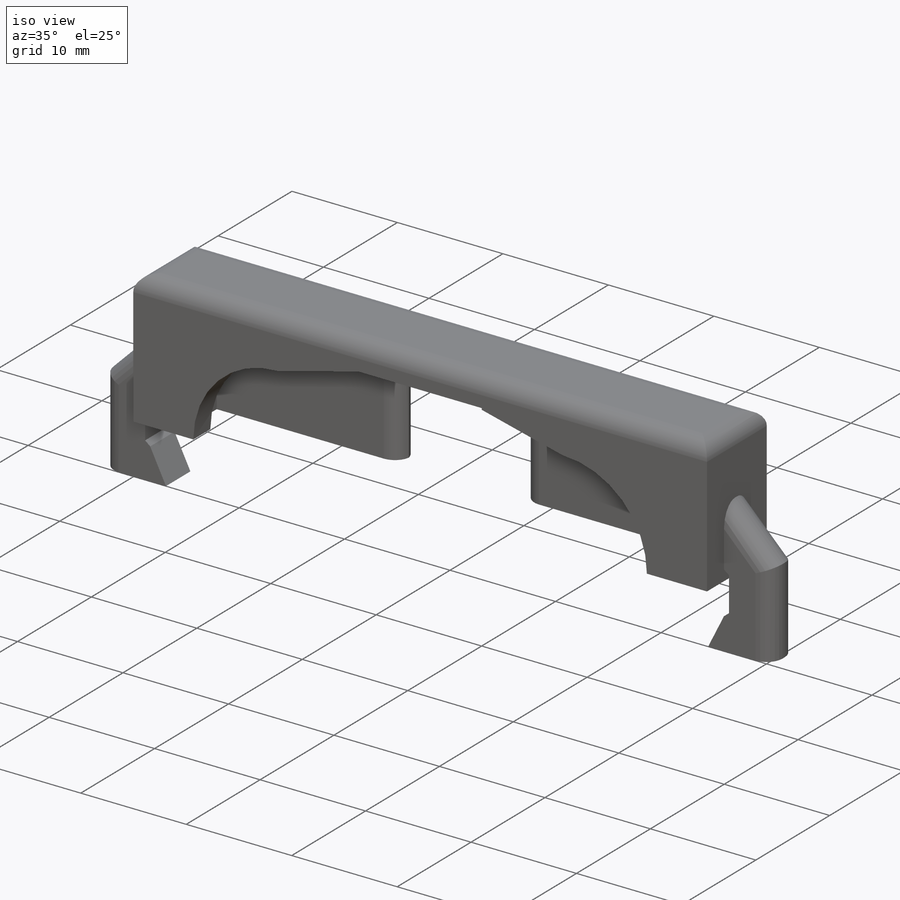
[diagram: iso view]
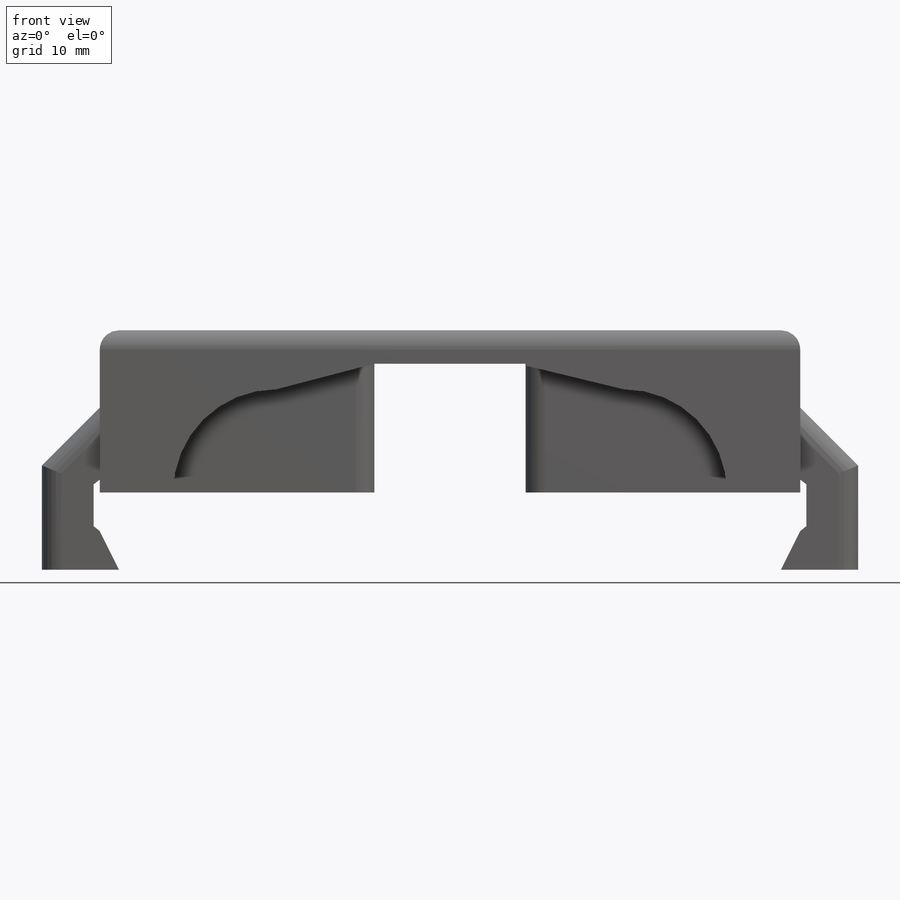
[diagram: front view]
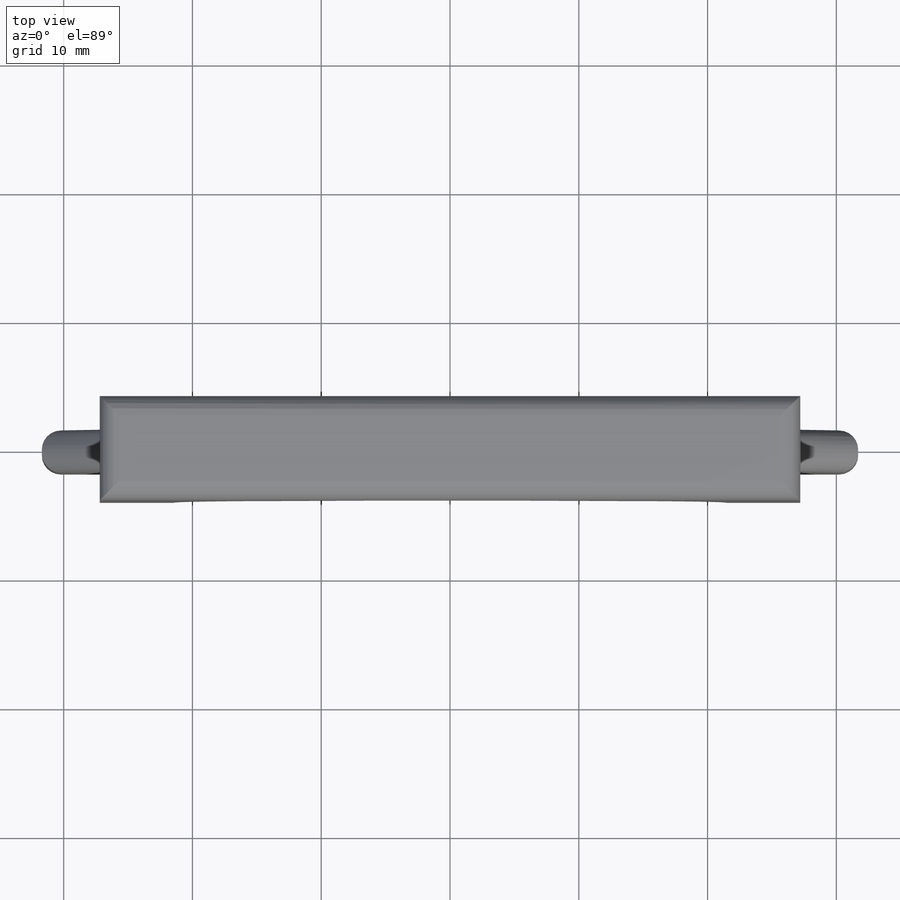
[diagram: top view]
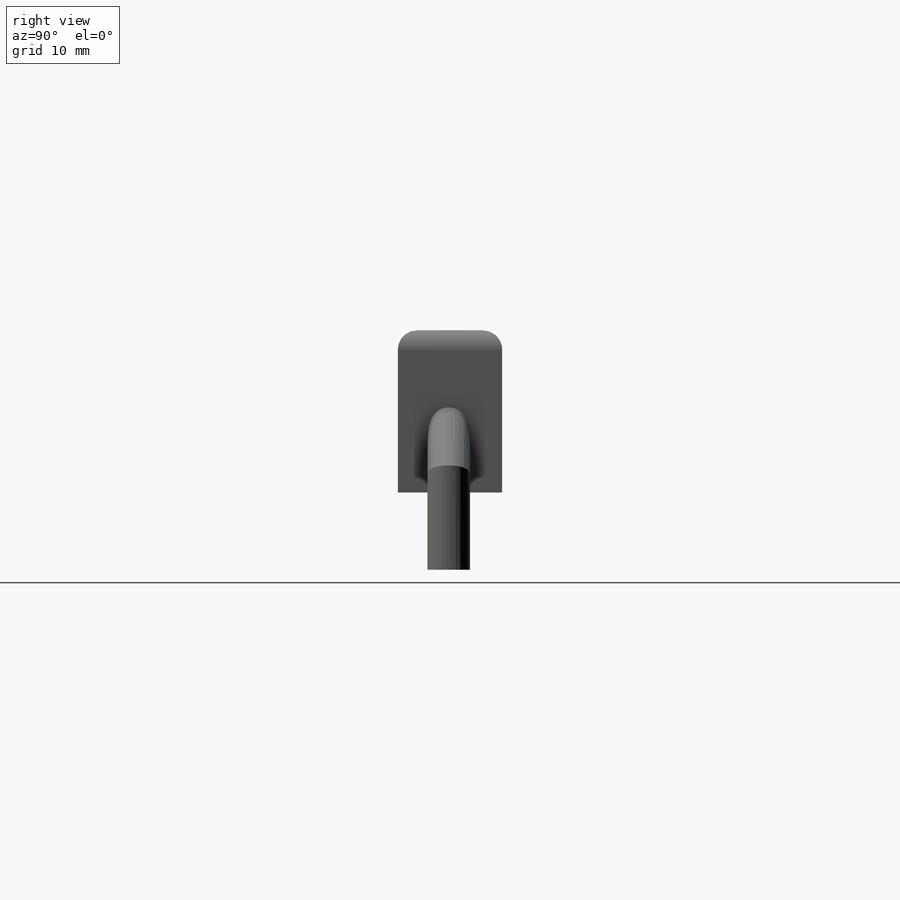
[diagram: right view]
SOLIDWORKS PART (.sldprt)
format: sldprt  version: not decoded by parser v0  size: 334,848 bytes
history: native  units: mm
features: sketch x8, extrude x4, cut_extrude x4, fillet x4, material x1 (+11 scaffold rows collapsed)
feature tree (32):
  scaffold x11  (default folders/planes/origin — collapsed)
  material  "Material <not specified>"
  sketch  "Sketch1"  dims[D1=54.4mm D2=8.1mm D3=2.5mm D4=4.0mm D5=4.0mm D6=2.3mm]
  extrude  "Boss-Extrude1"  Depth=10mm
  sketch  "Sketch2"  dims[D1=11.7mm D2=20.0mm D3=0.0mm D4=21.35mm D5=5.85mm]
  cut_extrude  "Cut-Extrude1"  Depth=10mm
  sketch  "Sketch3"  dims[D1=27.0mm D2=13.5mm]
  cut_extrude  "Cut-Extrude2"  Depth=10mm
  sketch  "Sketch4"
  extrude  "Boss-Extrude2"  Depth=2.6mm
  sketch  "Sketch5"  dims[c1.D1=6.0mm c1.D2=0.0mm c1.D3=2.5mm c1.D4=6.0mm c1.D5=3.0mm c2.D1=1.5mm]
  extrude  "Boss-Extrude3"  Depth=3.3mm
  cut_extrude  "Cut-Extrude3"  [1 undecoded]
  sketch  "Sketch2<2>"  dims[D1=20.0mm]
  sketch  "Sketch6"  dims[D1=~8.121629mm]
  cut_extrude  "Cut-Extrude4"  Depth=5mm
  sketch  "Sketch7"
  extrude  "Boss-Extrude4"  Depth=3.3mm
  fillet  "Fillet1"  Radius=1.5mm
  fillet  "Fillet2"  Radius=1.5mm
  fillet  "Fillet3"  Radius=1.5mm
  fillet  "Fillet4"  Radius=1.5mm
decode coverage: 17 of 20 modeling features carry decoded parameters
note: ~ marks probable driven/reference dimensions
note: 1 parameter value undecoded
note: suppression state not decoded; provenance and decode notes live in map.json
